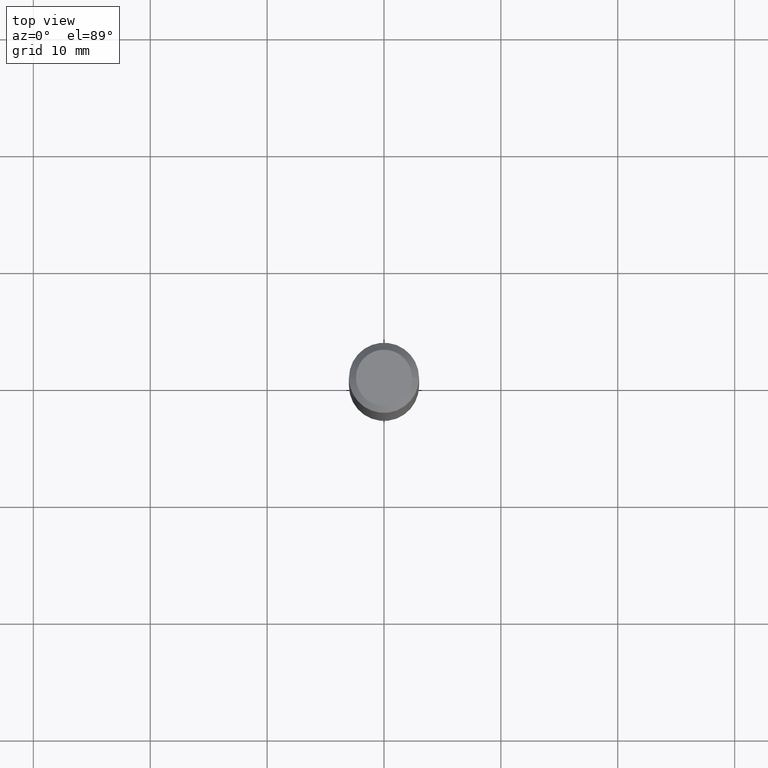
[diagram: clean part render]
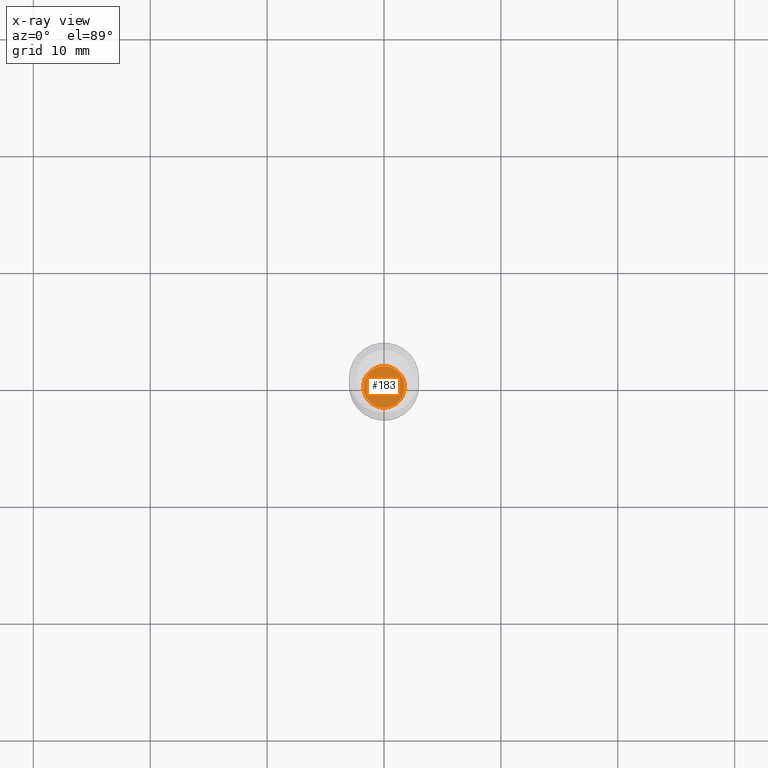
[diagram: x-ray — body ghosted, one internal face saturated and labeled with its STEP entity id]
A machine part, top view, then the same camera in x-ray: the body is ghosted and one INTERNAL B-rep face — a face not visible from any outside direction — is saturated and labeled: STEP entity #183.
In plain terms, the highlighted planar face has unit normal (-0, 0, 1).
Its self-contained STEP definition (entity closure, byte-faithful):
#23 = ORIENTED_EDGE ( 'NONE', *, *, #231, .F. ) ;
#37 = AXIS2_PLACEMENT_3D ( 'NONE', #161, #58, #97 ) ;
#58 = DIRECTION ( 'NONE',  ( -2.445468806185136597E-29, 3.491481338843145583E-15, 1.000000000000000000 ) ) ;
#85 = DIRECTION ( 'NONE',  ( -2.438088387897960049E-29, 3.491481338843145188E-15, 1.000000000000000000 ) ) ;
#97 = DIRECTION ( 'NONE',  ( 1.000000000000000000, -6.982962677686271444E-15, 0.000000000000000000 ) ) ;
#117 = DIRECTION ( 'NONE',  ( 1.000000000000000000, -6.982962677686265922E-15, 4.876176775795935793E-29 ) ) ;
#120 = AXIS2_PLACEMENT_3D ( 'NONE', #376, #85, #117 ) ;
#131 = EDGE_CURVE ( 'NONE', #175, #272, #431, .T. ) ;
#152 = CARTESIAN_POINT ( 'NONE',  ( 0.06980000000000000093, -6.751477464920990326E-15, -1.794100000000000028 ) ) ;
#161 = CARTESIAN_POINT ( 'NONE',  ( 4.387415585176754180E-29, -6.264066670018488385E-15, -1.794100000000000028 ) ) ;
#175 = VERTEX_POINT ( 'NONE', #152 ) ;
#183 = ADVANCED_FACE ( 'NONE', ( #336 ), #223, .F. ) ;
#223 = PLANE ( 'NONE',  #120 ) ;
#231 = EDGE_CURVE ( 'NONE', #272, #175, #247, .T. ) ;
#247 = CIRCLE ( 'NONE', #37, 0.06980000000000000093 ) ;
#264 = CARTESIAN_POINT ( 'NONE',  ( 4.387415585176754180E-29, -6.264066670018488385E-15, -1.794100000000000028 ) ) ;
#272 = VERTEX_POINT ( 'NONE', #312 ) ;
#312 = CARTESIAN_POINT ( 'NONE',  ( -0.06980000000000000093, -5.765458613283827445E-15, -1.794100000000000028 ) ) ;
#336 = FACE_OUTER_BOUND ( 'NONE', #397, .T. ) ;
#338 = DIRECTION ( 'NONE',  ( 1.000000000000000000, -6.982962677686271444E-15, 0.000000000000000000 ) ) ;
#376 = CARTESIAN_POINT ( 'NONE',  ( 4.387415585176754180E-29, -6.264066670018488385E-15, -1.794100000000000028 ) ) ;
#397 = EDGE_LOOP ( 'NONE', ( #427, #23 ) ) ;
#427 = ORIENTED_EDGE ( 'NONE', *, *, #131, .F. ) ;
#431 = CIRCLE ( 'NONE', #440, 0.06980000000000000093 ) ;
#440 = AXIS2_PLACEMENT_3D ( 'NONE', #264, #459, #338 ) ;
#459 = DIRECTION ( 'NONE',  ( -2.445468806185136597E-29, 3.491481338843145583E-15, 1.000000000000000000 ) ) ;